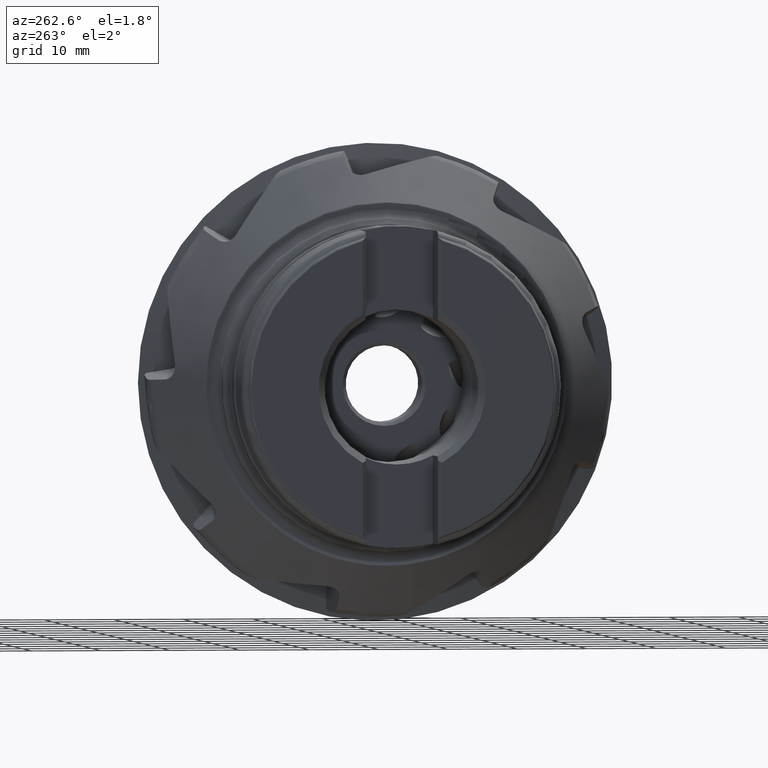
[diagram: clean part render]
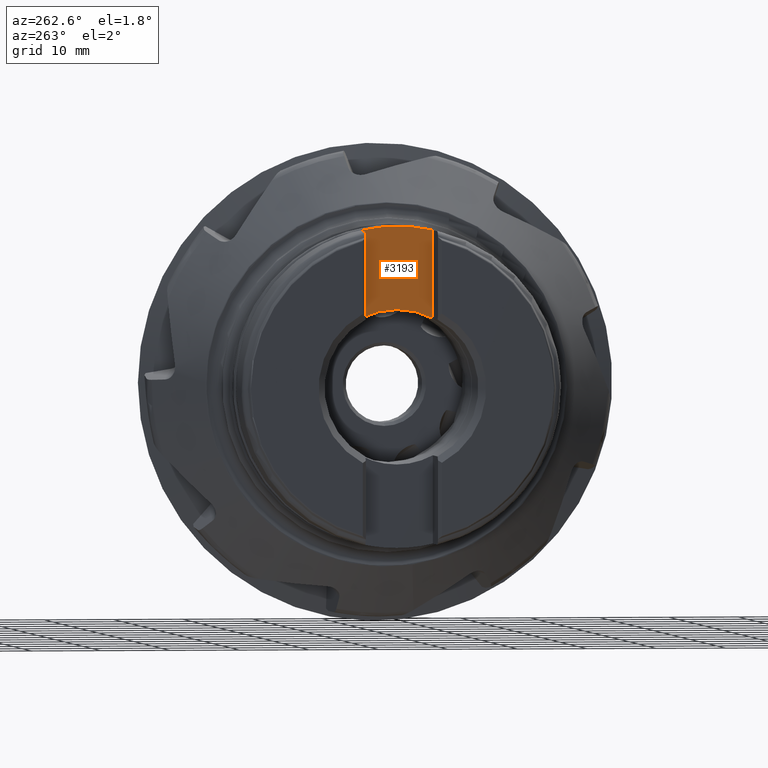
[diagram: same view with one face highlighted and labeled with its STEP entity id]
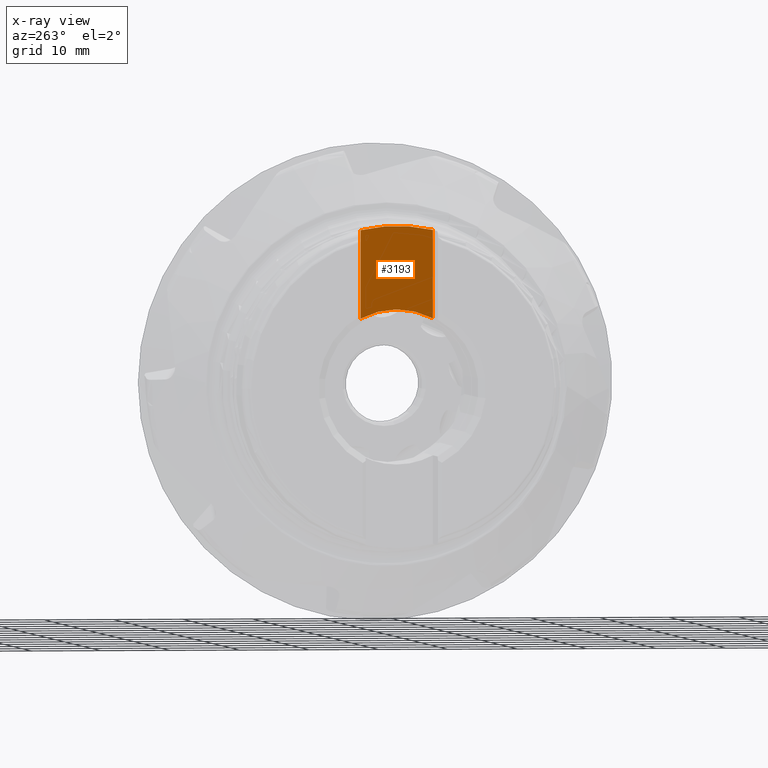
[diagram: x-ray of the same camera — body ghosted, the highlighted face saturated]
A machine part, auxiliary view. The second image highlights one B-rep face of the part: STEP entity #3193.
The next image is the same camera in x-ray: the body ghosted, the highlighted face saturated — about 0% of this face is hidden behind the body in this view.
In plain terms, the highlighted planar face has unit normal (1, 0, 0).
Its self-contained STEP definition (entity closure, byte-faithful):
#103 = CIRCLE ( 'NONE', #2948, 11.07499999999999400 ) ;
#282 = DIRECTION ( 'NONE',  ( -1.000000000000000000, -0.0000000000000000000, -0.0000000000000000000 ) ) ;
#371 = CIRCLE ( 'NONE', #4874, 22.99999999999999600 ) ;
#505 = CARTESIAN_POINT ( 'NONE',  ( -33.09999999999999400, -5.200000000000003700, 9.778324242936509600 ) ) ;
#1214 = CARTESIAN_POINT ( 'NONE',  ( -33.09999999999999400, 5.199999999999995700, 9.778324242936509600 ) ) ;
#1744 = PLANE ( 'NONE',  #2023 ) ;
#1811 = VERTEX_POINT ( 'NONE', #3221 ) ;
#1897 = DIRECTION ( 'NONE',  ( -0.0000000000000000000, -0.0000000000000000000, 1.000000000000000000 ) ) ;
#2023 = AXIS2_PLACEMENT_3D ( 'NONE', #4931, #2265, #6019 ) ;
#2265 = DIRECTION ( 'NONE',  ( 1.000000000000000000, 0.0000000000000000000, 0.0000000000000000000 ) ) ;
#2636 = VERTEX_POINT ( 'NONE', #5764 ) ;
#2686 = DIRECTION ( 'NONE',  ( -1.000000000000000000, -0.0000000000000000000, -0.0000000000000000000 ) ) ;
#2934 = LINE ( 'NONE', #5632, #4540 ) ;
#2948 = AXIS2_PLACEMENT_3D ( 'NONE', #5893, #2686, #6445 ) ;
#2986 = EDGE_CURVE ( 'NONE', #6916, #2636, #2934, .T. ) ;
#3023 = FACE_OUTER_BOUND ( 'NONE', #4306, .T. ) ;
#3084 = ORIENTED_EDGE ( 'NONE', *, *, #6838, .F. ) ;
#3193 = ADVANCED_FACE ( 'NONE', ( #3023 ), #1744, .F. ) ;
#3221 = CARTESIAN_POINT ( 'NONE',  ( -33.09999999999999400, -5.200000000000003700, 22.40446384094026700 ) ) ;
#3467 = VERTEX_POINT ( 'NONE', #505 ) ;
#3501 = CARTESIAN_POINT ( 'NONE',  ( -33.09999999999999400, 0.0000000000000000000, 0.0000000000000000000 ) ) ;
#4040 = DIRECTION ( 'NONE',  ( 0.0000000000000000000, 3.552713678800500900E-015, -1.000000000000000000 ) ) ;
#4306 = EDGE_LOOP ( 'NONE', ( #5066, #5898, #3084, #4332 ) ) ;
#4332 = ORIENTED_EDGE ( 'NONE', *, *, #5011, .T. ) ;
#4540 = VECTOR ( 'NONE', #1897, 1000.000000000000000 ) ;
#4670 = CARTESIAN_POINT ( 'NONE',  ( -33.09999999999999400, -5.200000000000003700, -40.00000000000000000 ) ) ;
#4874 = AXIS2_PLACEMENT_3D ( 'NONE', #3501, #282, #4040 ) ;
#4897 = VECTOR ( 'NONE', #5213, 1000.000000000000000 ) ;
#4931 = CARTESIAN_POINT ( 'NONE',  ( -33.09999999999999400, 5.199999999999995700, -40.00000000000000000 ) ) ;
#5011 = EDGE_CURVE ( 'NONE', #3467, #1811, #6312, .T. ) ;
#5066 = ORIENTED_EDGE ( 'NONE', *, *, #5819, .T. ) ;
#5213 = DIRECTION ( 'NONE',  ( -0.0000000000000000000, -0.0000000000000000000, 1.000000000000000000 ) ) ;
#5632 = CARTESIAN_POINT ( 'NONE',  ( -33.09999999999999400, 5.199999999999995700, -40.00000000000000000 ) ) ;
#5764 = CARTESIAN_POINT ( 'NONE',  ( -33.09999999999999400, 5.199999999999995700, 22.40446384094026700 ) ) ;
#5819 = EDGE_CURVE ( 'NONE', #1811, #2636, #371, .T. ) ;
#5893 = CARTESIAN_POINT ( 'NONE',  ( -33.09999999999999400, 0.0000000000000000000, 0.0000000000000000000 ) ) ;
#5898 = ORIENTED_EDGE ( 'NONE', *, *, #2986, .F. ) ;
#6019 = DIRECTION ( 'NONE',  ( 0.0000000000000000000, 0.0000000000000000000, -1.000000000000000000 ) ) ;
#6312 = LINE ( 'NONE', #4670, #4897 ) ;
#6445 = DIRECTION ( 'NONE',  ( 0.0000000000000000000, 0.0000000000000000000, -1.000000000000000000 ) ) ;
#6838 = EDGE_CURVE ( 'NONE', #3467, #6916, #103, .T. ) ;
#6916 = VERTEX_POINT ( 'NONE', #1214 ) ;